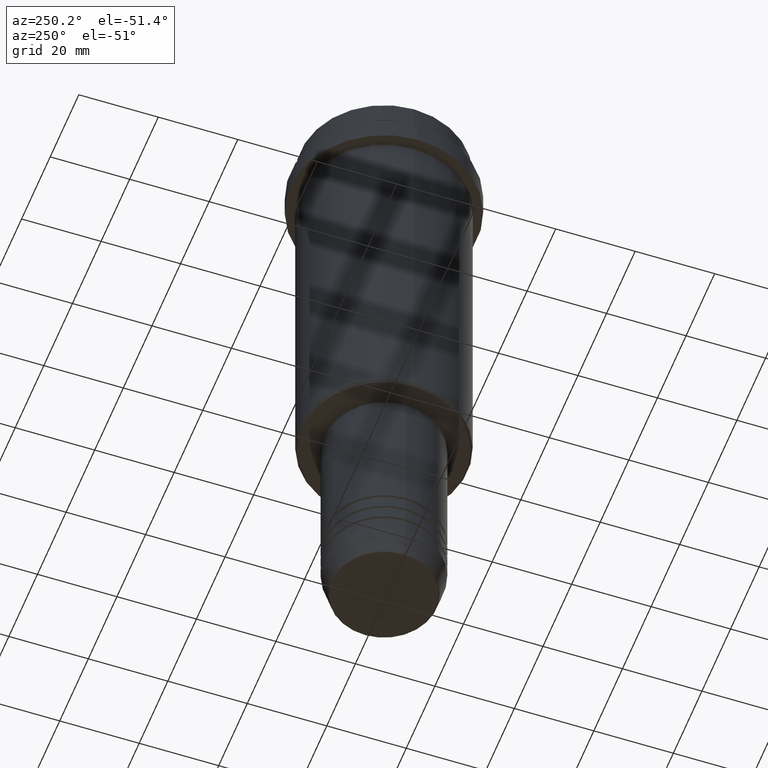
[diagram: clean part render]
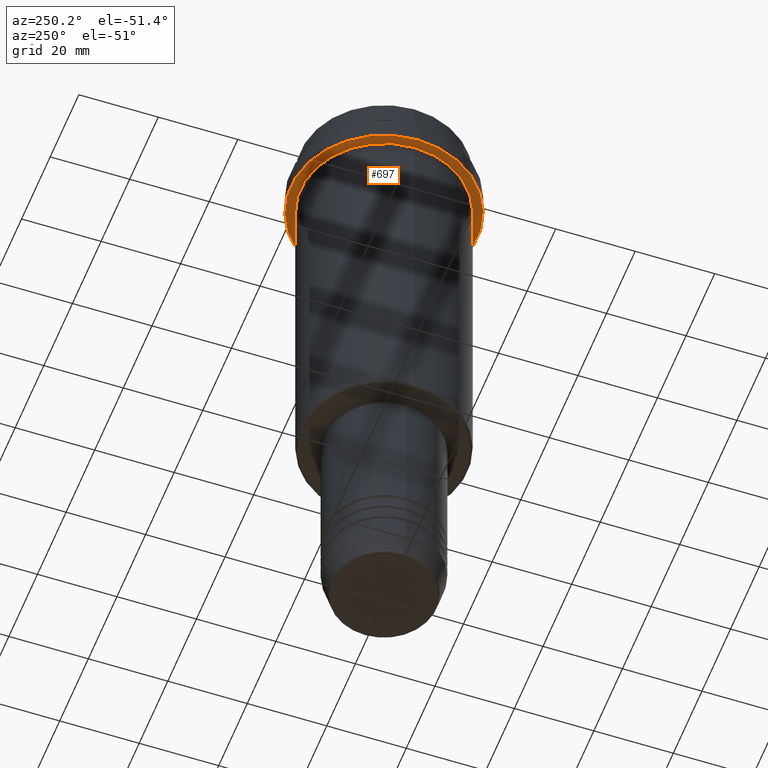
[diagram: same view with one face highlighted and labeled with its STEP entity id]
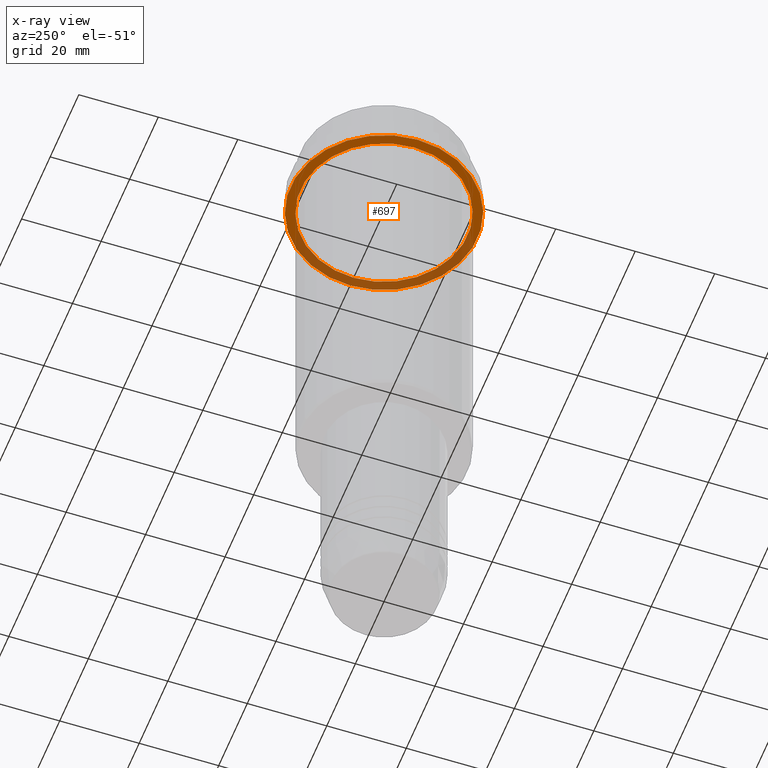
[diagram: x-ray of the same camera — body ghosted, the highlighted face saturated]
A machine part, auxiliary view. The second image highlights one B-rep face of the part: STEP entity #697.
The next image is the same camera in x-ray: the body ghosted, the highlighted face saturated — about 39% of this face is hidden behind the body in this view.
In plain terms, the highlighted planar face has unit normal (0, 0, -1).
Its self-contained STEP definition (entity closure, byte-faithful):
#21 = CARTESIAN_POINT ( 'NONE',  ( -23.50000000000000711, 2.877919977996281109E-15, -15.00000000000000000 ) ) ;
#35 = DIRECTION ( 'NONE',  ( 1.000000000000000000, 0.000000000000000000, 0.000000000000000000 ) ) ;
#40 = AXIS2_PLACEMENT_3D ( 'NONE', #1285, #396, #1176 ) ;
#49 = DIRECTION ( 'NONE',  ( -0.000000000000000000, -0.000000000000000000, 1.000000000000000000 ) ) ;
#64 = CARTESIAN_POINT ( 'NONE',  ( 0.000000000000000000, 0.000000000000000000, -15.00000000000000178 ) ) ;
#98 = DIRECTION ( 'NONE',  ( 1.000000000000000000, 0.000000000000000000, 0.000000000000000000 ) ) ;
#114 = CARTESIAN_POINT ( 'NONE',  ( 0.000000000000000000, 0.000000000000000000, -15.00000000000000000 ) ) ;
#162 = CARTESIAN_POINT ( 'NONE',  ( 0.000000000000000000, 0.000000000000000000, -15.00000000000000178 ) ) ;
#191 = EDGE_CURVE ( 'NONE', #1220, #1252, #494, .T. ) ;
#222 = CIRCLE ( 'NONE', #1074, 20.99999999999999289 ) ;
#323 = DIRECTION ( 'NONE',  ( -0.000000000000000000, -0.000000000000000000, 1.000000000000000000 ) ) ;
#369 = DIRECTION ( 'NONE',  ( -1.000000000000000000, 0.000000000000000000, 0.000000000000000000 ) ) ;
#374 = AXIS2_PLACEMENT_3D ( 'NONE', #114, #323, #98 ) ;
#396 = DIRECTION ( 'NONE',  ( 0.000000000000000000, 0.000000000000000000, -1.000000000000000000 ) ) ;
#408 = ORIENTED_EDGE ( 'NONE', *, *, #1178, .F. ) ;
#446 = ORIENTED_EDGE ( 'NONE', *, *, #191, .F. ) ;
#487 = CIRCLE ( 'NONE', #537, 20.99999999999999289 ) ;
#494 = CIRCLE ( 'NONE', #374, 23.50000000000000355 ) ;
#535 = FACE_OUTER_BOUND ( 'NONE', #1293, .T. ) ;
#537 = AXIS2_PLACEMENT_3D ( 'NONE', #162, #1050, #1172 ) ;
#661 = ORIENTED_EDGE ( 'NONE', *, *, #910, .T. ) ;
#675 = ORIENTED_EDGE ( 'NONE', *, *, #1416, .T. ) ;
#697 = ADVANCED_FACE ( 'NONE', ( #1082, #535 ), #1309, .T. ) ;
#763 = EDGE_LOOP ( 'NONE', ( #675, #661 ) ) ;
#779 = AXIS2_PLACEMENT_3D ( 'NONE', #917, #813, #35 ) ;
#813 = DIRECTION ( 'NONE',  ( -0.000000000000000000, -0.000000000000000000, 1.000000000000000000 ) ) ;
#910 = EDGE_CURVE ( 'NONE', #990, #1119, #222, .T. ) ;
#912 = CARTESIAN_POINT ( 'NONE',  ( 23.50000000000000355, 0.000000000000000000, -15.00000000000000000 ) ) ;
#917 = CARTESIAN_POINT ( 'NONE',  ( 0.000000000000000000, 0.000000000000000000, -15.00000000000000000 ) ) ;
#990 = VERTEX_POINT ( 'NONE', #1042 ) ;
#1042 = CARTESIAN_POINT ( 'NONE',  ( 20.99999999999999289, 2.571758278209440872E-15, -15.00000000000000178 ) ) ;
#1050 = DIRECTION ( 'NONE',  ( -0.000000000000000000, -0.000000000000000000, 1.000000000000000000 ) ) ;
#1074 = AXIS2_PLACEMENT_3D ( 'NONE', #64, #49, #369 ) ;
#1082 = FACE_BOUND ( 'NONE', #763, .T. ) ;
#1119 = VERTEX_POINT ( 'NONE', #1292 ) ;
#1172 = DIRECTION ( 'NONE',  ( -1.000000000000000000, 0.000000000000000000, 0.000000000000000000 ) ) ;
#1176 = DIRECTION ( 'NONE',  ( -1.000000000000000000, 0.000000000000000000, -0.000000000000000000 ) ) ;
#1178 = EDGE_CURVE ( 'NONE', #1252, #1220, #1182, .T. ) ;
#1182 = CIRCLE ( 'NONE', #779, 23.50000000000000355 ) ;
#1220 = VERTEX_POINT ( 'NONE', #21 ) ;
#1252 = VERTEX_POINT ( 'NONE', #912 ) ;
#1285 = CARTESIAN_POINT ( 'NONE',  ( 0.000000000000000000, 23.50000000000000355, -15.00000000000000178 ) ) ;
#1292 = CARTESIAN_POINT ( 'NONE',  ( -20.99999999999999289, 0.000000000000000000, -15.00000000000000178 ) ) ;
#1293 = EDGE_LOOP ( 'NONE', ( #408, #446 ) ) ;
#1309 = PLANE ( 'NONE',  #40 ) ;
#1416 = EDGE_CURVE ( 'NONE', #1119, #990, #487, .T. ) ;